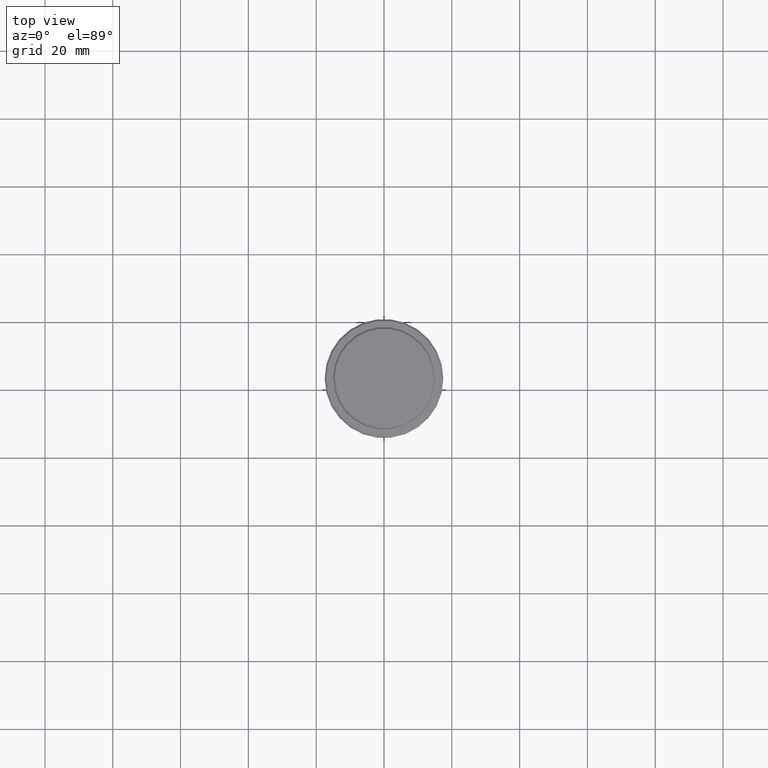
[diagram: clean part render]
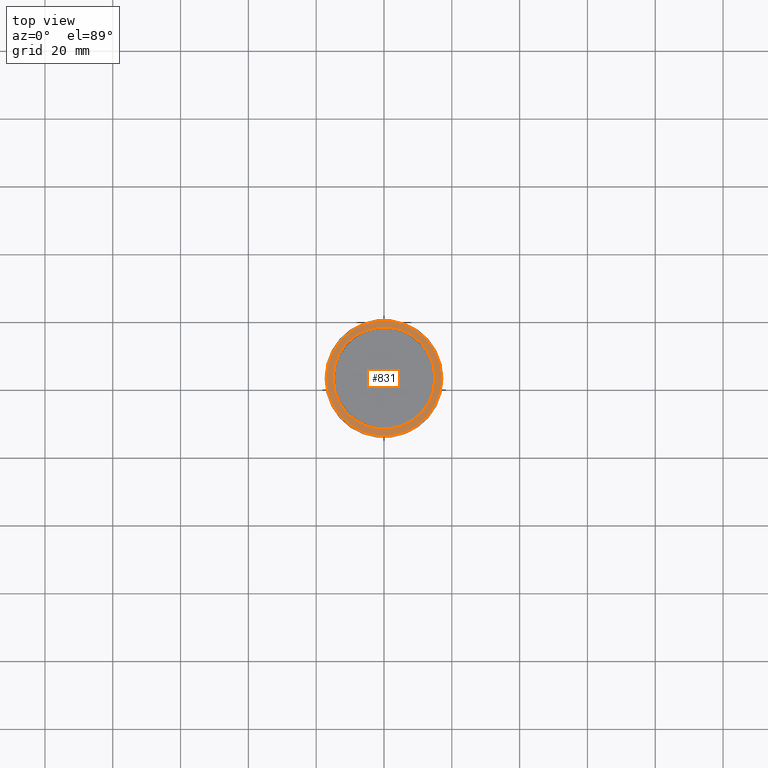
[diagram: same view with one face highlighted and labeled with its STEP entity id]
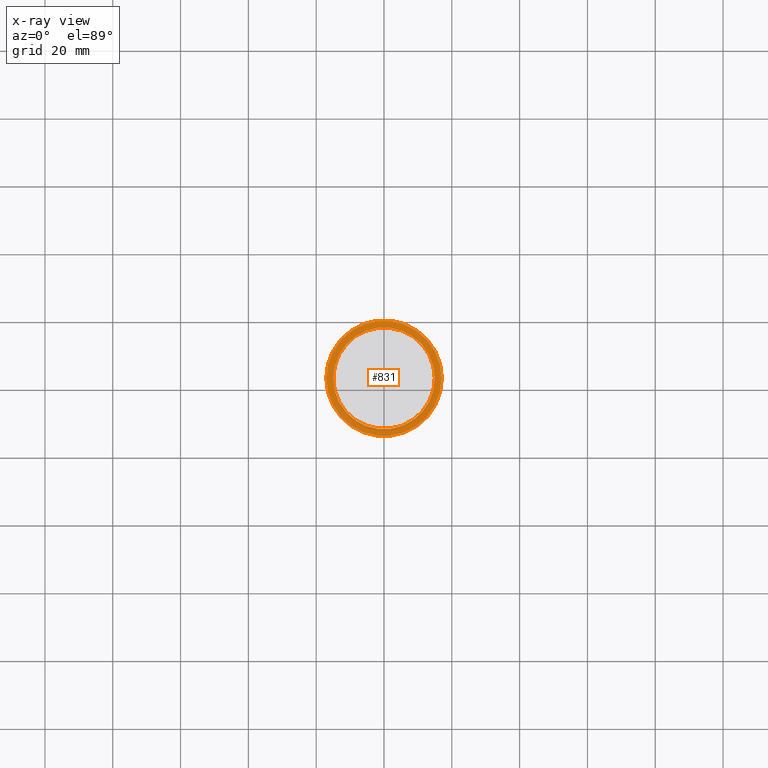
[diagram: x-ray of the same camera — body ghosted, the highlighted face saturated]
A machine part, top view. The second image highlights one B-rep face of the part: STEP entity #831.
The next image is the same camera in x-ray: the body ghosted, the highlighted face saturated — about 0% of this face is hidden behind the body in this view.
In plain terms, the highlighted planar face has unit normal (0, -0, 1).
Its self-contained STEP definition (entity closure, byte-faithful):
#61 = CARTESIAN_POINT ( 'NONE',  ( -14.99999999999999289, 1.836970198721028800E-15, -9.000000000000000000 ) ) ;
#65 = DIRECTION ( 'NONE',  ( 1.000000000000000000, 0.000000000000000000, 0.000000000000000000 ) ) ;
#77 = EDGE_CURVE ( 'NONE', #260, #1255, #806, .T. ) ;
#79 = AXIS2_PLACEMENT_3D ( 'NONE', #473, #591, #479 ) ;
#90 = ORIENTED_EDGE ( 'NONE', *, *, #125, .T. ) ;
#125 = EDGE_CURVE ( 'NONE', #1255, #260, #1356, .T. ) ;
#152 = DIRECTION ( 'NONE',  ( 0.000000000000000000, 0.000000000000000000, -1.000000000000000000 ) ) ;
#186 = CARTESIAN_POINT ( 'NONE',  ( 16.99999999999998579, 2.112515728529183278E-15, -9.000000000000000000 ) ) ;
#237 = AXIS2_PLACEMENT_3D ( 'NONE', #1246, #1364, #385 ) ;
#260 = VERTEX_POINT ( 'NONE', #186 ) ;
#278 = DIRECTION ( 'NONE',  ( 0.000000000000000000, 0.000000000000000000, -1.000000000000000000 ) ) ;
#385 = DIRECTION ( 'NONE',  ( 1.000000000000000000, 0.000000000000000000, 0.000000000000000000 ) ) ;
#404 = CARTESIAN_POINT ( 'NONE',  ( 0.000000000000000000, 0.000000000000000000, -9.000000000000000000 ) ) ;
#417 = DIRECTION ( 'NONE',  ( 1.000000000000000000, 0.000000000000000000, 0.000000000000000000 ) ) ;
#471 = CARTESIAN_POINT ( 'NONE',  ( -16.99999999999998579, 0.000000000000000000, -9.000000000000000000 ) ) ;
#473 = CARTESIAN_POINT ( 'NONE',  ( 0.000000000000000000, 0.000000000000000000, -9.000000000000000000 ) ) ;
#479 = DIRECTION ( 'NONE',  ( 1.000000000000000000, 0.000000000000000000, 0.000000000000000000 ) ) ;
#516 = AXIS2_PLACEMENT_3D ( 'NONE', #1341, #152, #1249 ) ;
#554 = AXIS2_PLACEMENT_3D ( 'NONE', #404, #708, #417 ) ;
#575 = ORIENTED_EDGE ( 'NONE', *, *, #77, .T. ) ;
#591 = DIRECTION ( 'NONE',  ( -0.000000000000000000, -0.000000000000000000, 1.000000000000000000 ) ) ;
#708 = DIRECTION ( 'NONE',  ( -0.000000000000000000, -0.000000000000000000, 1.000000000000000000 ) ) ;
#717 = FACE_OUTER_BOUND ( 'NONE', #812, .T. ) ;
#791 = EDGE_CURVE ( 'NONE', #818, #1281, #1127, .T. ) ;
#806 = CIRCLE ( 'NONE', #79, 16.99999999999998579 ) ;
#812 = EDGE_LOOP ( 'NONE', ( #90, #575 ) ) ;
#818 = VERTEX_POINT ( 'NONE', #1380 ) ;
#831 = ADVANCED_FACE ( 'NONE', ( #717, #1131 ), #1373, .T. ) ;
#905 = EDGE_LOOP ( 'NONE', ( #1078, #1411 ) ) ;
#1033 = CARTESIAN_POINT ( 'NONE',  ( 0.000000000000000000, 0.000000000000000000, -9.000000000000000000 ) ) ;
#1078 = ORIENTED_EDGE ( 'NONE', *, *, #791, .T. ) ;
#1088 = CIRCLE ( 'NONE', #516, 14.99999999999999289 ) ;
#1127 = CIRCLE ( 'NONE', #1288, 14.99999999999999289 ) ;
#1131 = FACE_BOUND ( 'NONE', #905, .T. ) ;
#1246 = CARTESIAN_POINT ( 'NONE',  ( 0.000000000000000000, 14.49999999999999467, -9.000000000000000000 ) ) ;
#1249 = DIRECTION ( 'NONE',  ( 1.000000000000000000, 0.000000000000000000, 0.000000000000000000 ) ) ;
#1255 = VERTEX_POINT ( 'NONE', #471 ) ;
#1281 = VERTEX_POINT ( 'NONE', #61 ) ;
#1288 = AXIS2_PLACEMENT_3D ( 'NONE', #1033, #278, #65 ) ;
#1299 = EDGE_CURVE ( 'NONE', #1281, #818, #1088, .T. ) ;
#1341 = CARTESIAN_POINT ( 'NONE',  ( 0.000000000000000000, 0.000000000000000000, -9.000000000000000000 ) ) ;
#1356 = CIRCLE ( 'NONE', #554, 16.99999999999998579 ) ;
#1364 = DIRECTION ( 'NONE',  ( 0.000000000000000000, -0.000000000000000000, 1.000000000000000000 ) ) ;
#1373 = PLANE ( 'NONE',  #237 ) ;
#1380 = CARTESIAN_POINT ( 'NONE',  ( 14.99999999999999289, 0.000000000000000000, -9.000000000000000000 ) ) ;
#1411 = ORIENTED_EDGE ( 'NONE', *, *, #1299, .T. ) ;